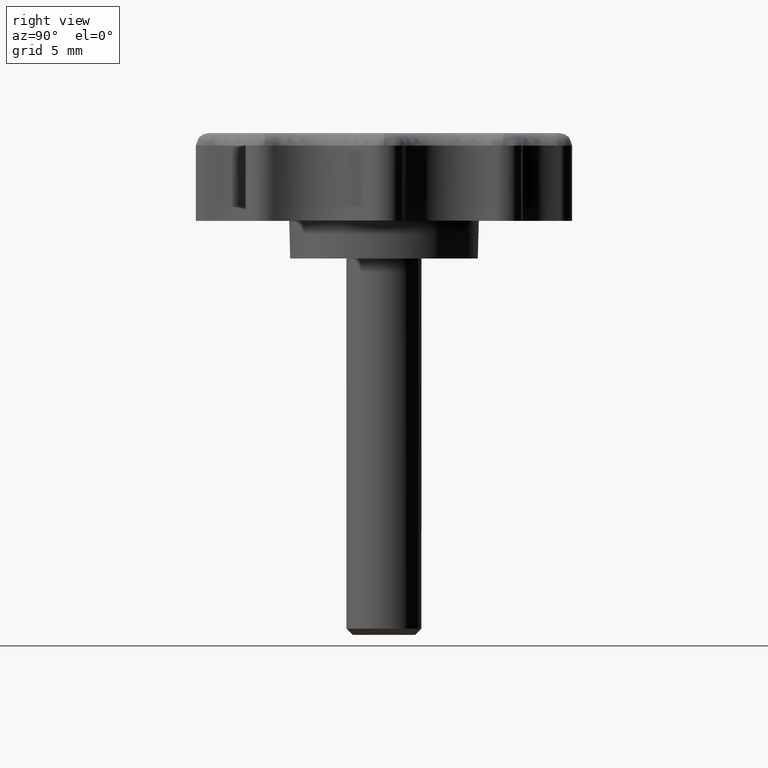
[diagram: clean part render]
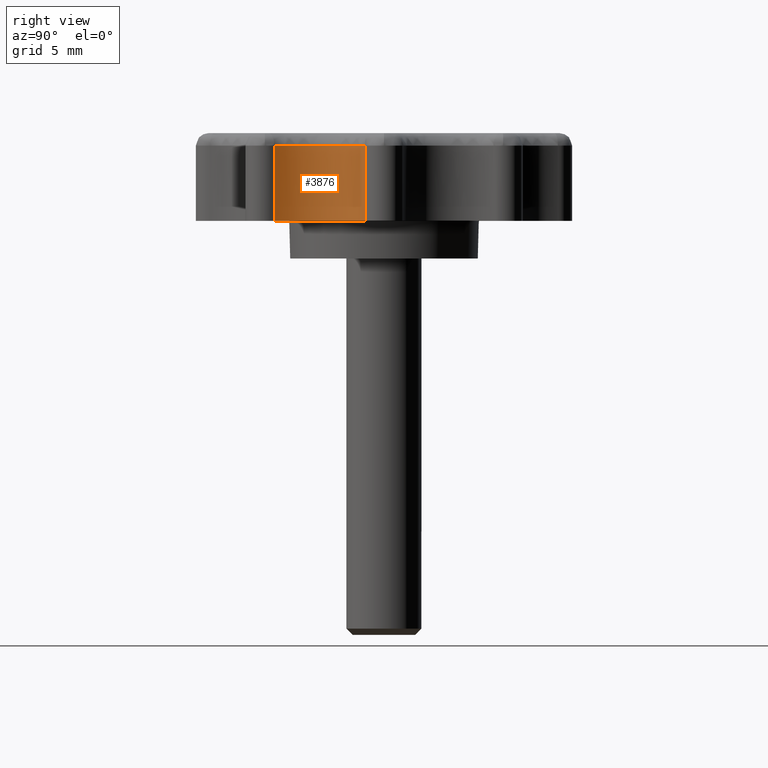
[diagram: same view with one face highlighted and labeled with its STEP entity id]
A machine part, right view. The second image highlights one B-rep face of the part: STEP entity #3876.
In plain terms, the highlighted face is a freeform B-spline surface patch.
Its self-contained STEP definition (entity closure, byte-faithful):
#1398=CARTESIAN_POINT('',(10.869856000394661,-8.736418754428561,9.0));
#1399=VERTEX_POINT('',#1398);
#1470=CARTESIAN_POINT('',(13.863725862472840,-1.508571710689175,9.0));
#1471=VERTEX_POINT('',#1470);
#2960=CARTESIAN_POINT('',(13.863725862472840,-1.508571710689175,9.0));
#2961=CARTESIAN_POINT('',(11.547020586787768,-2.173971064613788,9.0));
#2962=CARTESIAN_POINT('',(10.624612826428450,-4.400862071874643,9.0));
#2963=CARTESIAN_POINT('',(9.702205066069135,-6.627753079135500,9.0));
#2964=CARTESIAN_POINT('',(10.869856000394661,-8.736418754428561,9.0));
#2972=(BOUNDED_CURVE()B_SPLINE_CURVE(2,(#2960,#2961,#2962,#2963,#2964),.UNSPECIFIED.,.F.,.U.)B_SPLINE_CURVE_WITH_KNOTS((3,2,3),(0.0,0.500000000000000,1.0),.UNSPECIFIED.)CURVE()GEOMETRIC_REPRESENTATION_ITEM()RATIONAL_B_SPLINE_CURVE((1.0,0.900793001784100,1.0,0.900793001784100,1.0))REPRESENTATION_ITEM(''));
#2973=EDGE_CURVE('',#1471,#1399,#2972,.T.);
#3830=CARTESIAN_POINT('',(13.994222035352490,-1.472994333053260,9.150000000000000));
#3831=CARTESIAN_POINT('',(13.994222035352490,-1.472994333053260,2.846250000000000));
#3832=CARTESIAN_POINT('',(7.213312185768813,-3.223502438607836,9.150000000000002));
#3833=CARTESIAN_POINT('',(7.213312185768813,-3.223502438607836,2.846250000000000));
#3834=CARTESIAN_POINT('',(11.070951042539559,-9.068469458747964,9.150000000000000));
#3835=CARTESIAN_POINT('',(11.070951042539559,-9.068469458747964,2.846249999999999));
#3843=(BOUNDED_SURFACE()B_SPLINE_SURFACE(1,2,((#3830,#3832,#3834),(#3831,#3833,#3835)),.UNSPECIFIED.,.F.,.F.,.U.)B_SPLINE_SURFACE_WITH_KNOTS((2,2),(3,3),(0.0,6.303750000000002),(0.0,10.295104444307210),.UNSPECIFIED.)GEOMETRIC_REPRESENTATION_ITEM()RATIONAL_B_SPLINE_SURFACE(((1.0,0.580929752916554,0.999546650937375),(1.0,0.580929752916554,0.999546650937375)))REPRESENTATION_ITEM('')SURFACE());
#3844=CARTESIAN_POINT('',(13.863725862472840,-1.508571710689175,3.0));
#3845=VERTEX_POINT('',#3844);
#3846=CARTESIAN_POINT('',(13.863725862472840,-1.508571710689175,9.0));
#3847=CARTESIAN_POINT('',(13.863725862472840,-1.508571710689175,3.0));
#3848=QUASI_UNIFORM_CURVE('',1,(#3846,#3847),.UNSPECIFIED.,.F.,.U.);
#3849=EDGE_CURVE('',#1471,#3845,#3848,.T.);
#3850=ORIENTED_EDGE('',*,*,#3849,.F.);
#3851=ORIENTED_EDGE('',*,*,#2973,.T.);
#3852=CARTESIAN_POINT('',(10.869856000394661,-8.736418754428561,3.0));
#3853=VERTEX_POINT('',#3852);
#3854=CARTESIAN_POINT('',(10.869856000394661,-8.736418754428561,9.0));
#3855=CARTESIAN_POINT('',(10.869856000394661,-8.736418754428561,3.0));
#3856=QUASI_UNIFORM_CURVE('',1,(#3854,#3855),.UNSPECIFIED.,.F.,.U.);
#3857=EDGE_CURVE('',#1399,#3853,#3856,.T.);
#3858=ORIENTED_EDGE('',*,*,#3857,.T.);
#3859=CARTESIAN_POINT('',(10.869856000394661,-8.736418754428561,3.0));
#3860=CARTESIAN_POINT('',(9.702205066069135,-6.627753079135502,3.0));
#3861=CARTESIAN_POINT('',(10.624612826428450,-4.400862071874644,3.0));
#3862=CARTESIAN_POINT('',(11.547020586787768,-2.173971064613788,3.0));
#3863=CARTESIAN_POINT('',(13.863725862472840,-1.508571710689175,3.0));
#3871=(BOUNDED_CURVE()B_SPLINE_CURVE(2,(#3859,#3860,#3861,#3862,#3863),.UNSPECIFIED.,.F.,.U.)B_SPLINE_CURVE_WITH_KNOTS((3,2,3),(0.0,0.500000000000000,1.0),.UNSPECIFIED.)CURVE()GEOMETRIC_REPRESENTATION_ITEM()RATIONAL_B_SPLINE_CURVE((1.0,0.900793001784100,1.0,0.900793001784100,1.0))REPRESENTATION_ITEM(''));
#3872=EDGE_CURVE('',#3853,#3845,#3871,.T.);
#3873=ORIENTED_EDGE('',*,*,#3872,.T.);
#3874=EDGE_LOOP('',(#3850,#3851,#3858,#3873));
#3875=FACE_OUTER_BOUND('',#3874,.T.);
#3876=ADVANCED_FACE('',(#3875),#3843,.F.);